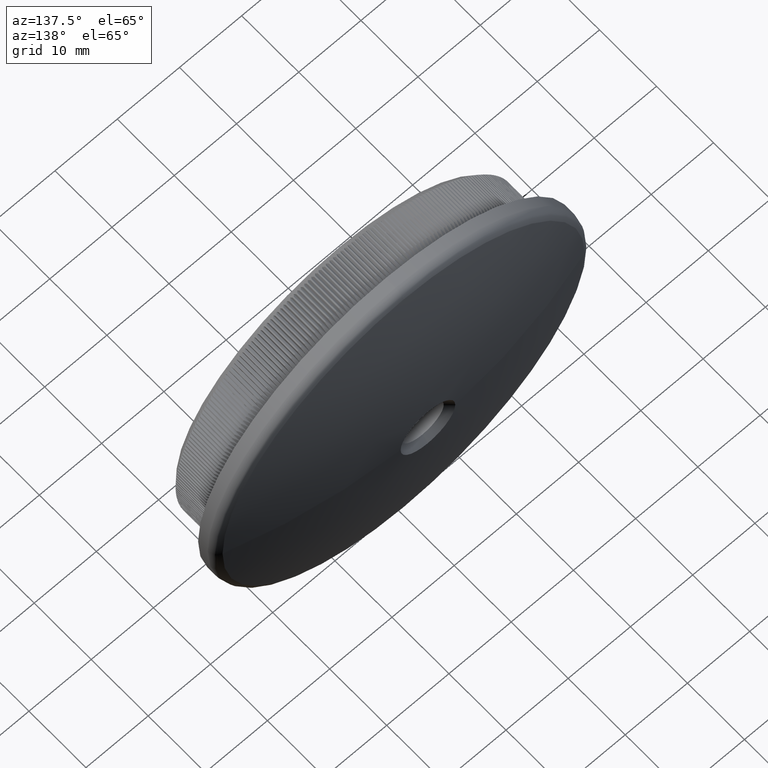
[diagram: clean part render]
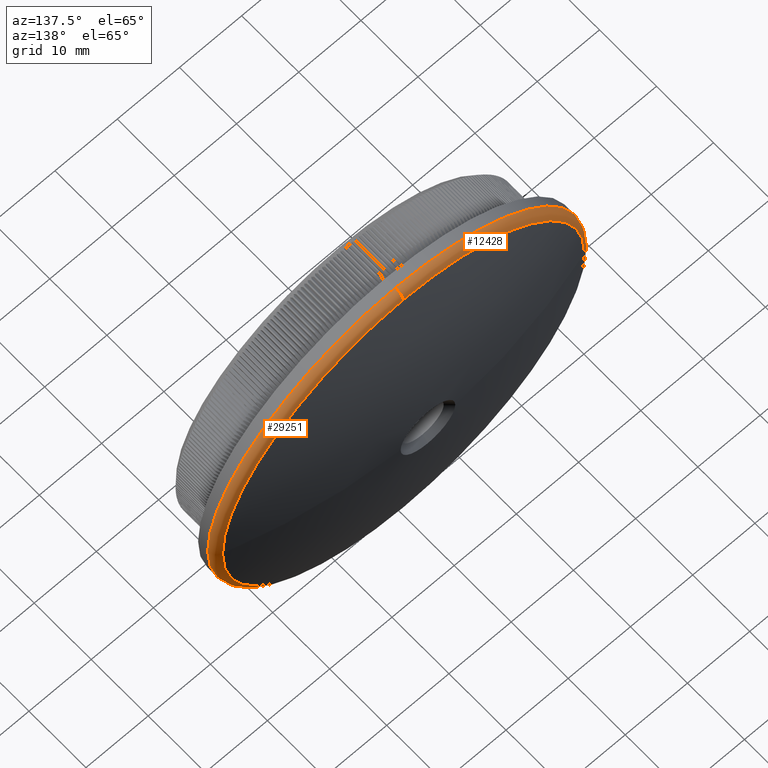
[diagram: same view with one multi-face feature highlighted, each face labeled with its STEP entity id]
A machine part, auxiliary view. The highlighted faces form ONE feature: a constant-radius fillet chain: 2 tangent blend faces with common blend radius 1.5 mm. The faces share edges in the B-rep.
Their STEP definitions:
[1] entity #12428 (Torus):
#2725 = VERTEX_POINT ( 'NONE', #38613 ) ;
#2886 = ORIENTED_EDGE ( 'NONE', *, *, #28703, .F. ) ;
#3929 = EDGE_CURVE ( 'NONE', #12416, #5471, #28543, .T. ) ;
#4830 = AXIS2_PLACEMENT_3D ( 'NONE', #24800, #24354, #31810 ) ;
#5471 = VERTEX_POINT ( 'NONE', #14325 ) ;
#6488 = AXIS2_PLACEMENT_3D ( 'NONE', #12466, #36932, #41189 ) ;
#6691 = DIRECTION ( 'NONE',  ( 0.000000000000000000, 1.000000000000000000, 0.000000000000000000 ) ) ;
#7801 = ORIENTED_EDGE ( 'NONE', *, *, #26812, .F. ) ;
#9790 = TOROIDAL_SURFACE ( 'NONE', #29928, 28.64999999999999503, 1.500000000000000000 ) ;
#10281 = AXIS2_PLACEMENT_3D ( 'NONE', #27511, #28112, #13730 ) ;
#10586 = ORIENTED_EDGE ( 'NONE', *, *, #43008, .T. ) ;
#11093 = DIRECTION ( 'NONE',  ( 1.000000000000000000, 0.000000000000000000, -1.224646799147352961E-16 ) ) ;
#12174 = ORIENTED_EDGE ( 'NONE', *, *, #25877, .F. ) ;
#12416 = VERTEX_POINT ( 'NONE', #30279 ) ;
#12428 = ADVANCED_FACE ( 'NONE', ( #21283 ), #9790, .T. ) ;
#12466 = CARTESIAN_POINT ( 'NONE',  ( 0.000000000000000000, 9.698157620612199992, -28.64999999999999503 ) ) ;
#13730 = DIRECTION ( 'NONE',  ( 0.000000000000000000, 0.000000000000000000, -1.000000000000000000 ) ) ;
#13983 = ORIENTED_EDGE ( 'NONE', *, *, #3929, .F. ) ;
#14325 = CARTESIAN_POINT ( 'NONE',  ( -29.09052289363562593, 11.13201241806655695, 3.562561574721366206E-15 ) ) ;
#14909 = CARTESIAN_POINT ( 'NONE',  ( 3.508613079557166097E-15, 9.698157620612199992, 28.64999999999999503 ) ) ;
#14959 = CARTESIAN_POINT ( 'NONE',  ( 3.627435837075313568E-15, 11.13201241806654984, 29.09052289363557975 ) ) ;
#15446 = CIRCLE ( 'NONE', #4830, 29.09052289363557975 ) ;
#17765 = CARTESIAN_POINT ( 'NONE',  ( 0.000000000000000000, 9.698157620612199992, -30.14999999999999503 ) ) ;
#19534 = CIRCLE ( 'NONE', #6488, 1.500000000000001332 ) ;
#20095 = AXIS2_PLACEMENT_3D ( 'NONE', #24101, #6691, #27753 ) ;
#21283 = FACE_OUTER_BOUND ( 'NONE', #33379, .T. ) ;
#24101 = CARTESIAN_POINT ( 'NONE',  ( 0.000000000000000000, 11.13201241806654984, 0.000000000000000000 ) ) ;
#24354 = DIRECTION ( 'NONE',  ( 0.000000000000000000, 1.000000000000000000, 0.000000000000000000 ) ) ;
#24800 = CARTESIAN_POINT ( 'NONE',  ( 0.000000000000000000, 11.13201241806654984, 0.000000000000000000 ) ) ;
#25877 = EDGE_CURVE ( 'NONE', #2725, #37738, #37472, .T. ) ;
#26283 = VERTEX_POINT ( 'NONE', #14959 ) ;
#26812 = EDGE_CURVE ( 'NONE', #26283, #2725, #28690, .T. ) ;
#26913 = DIRECTION ( 'NONE',  ( -0.000000000000000000, -1.000000000000000000, -0.000000000000000000 ) ) ;
#27511 = CARTESIAN_POINT ( 'NONE',  ( 0.000000000000000000, 9.698157620612199992, 0.000000000000000000 ) ) ;
#27753 = DIRECTION ( 'NONE',  ( 0.000000000000000000, 0.000000000000000000, -1.000000000000000000 ) ) ;
#27917 = AXIS2_PLACEMENT_3D ( 'NONE', #14909, #11093, #35545 ) ;
#28112 = DIRECTION ( 'NONE',  ( -0.000000000000000000, -1.000000000000000000, -0.000000000000000000 ) ) ;
#28543 = CIRCLE ( 'NONE', #20095, 29.09052289363557975 ) ;
#28690 = CIRCLE ( 'NONE', #27917, 1.500000000000001332 ) ;
#28703 = EDGE_CURVE ( 'NONE', #5471, #26283, #15446, .T. ) ;
#29928 = AXIS2_PLACEMENT_3D ( 'NONE', #30877, #26913, #33909 ) ;
#30279 = CARTESIAN_POINT ( 'NONE',  ( 0.000000000000000000, 11.13201241806654984, -29.09052289363557975 ) ) ;
#30877 = CARTESIAN_POINT ( 'NONE',  ( 0.000000000000000000, 9.698157620612199992, 0.000000000000000000 ) ) ;
#31810 = DIRECTION ( 'NONE',  ( 0.000000000000000000, 0.000000000000000000, -1.000000000000000000 ) ) ;
#33379 = EDGE_LOOP ( 'NONE', ( #7801, #2886, #13983, #10586, #12174 ) ) ;
#33909 = DIRECTION ( 'NONE',  ( 0.000000000000000000, 0.000000000000000000, -1.000000000000000000 ) ) ;
#35545 = DIRECTION ( 'NONE',  ( -1.224646799147351975E-16, 0.000000000000000000, -1.000000000000000000 ) ) ;
#36932 = DIRECTION ( 'NONE',  ( -1.000000000000000000, 0.000000000000000000, 0.000000000000000000 ) ) ;
#37472 = CIRCLE ( 'NONE', #10281, 30.14999999999999503 ) ;
#37738 = VERTEX_POINT ( 'NONE', #17765 ) ;
#38613 = CARTESIAN_POINT ( 'NONE',  ( 3.692310099429269608E-15, 9.698157620612199992, 30.14999999999999503 ) ) ;
#41189 = DIRECTION ( 'NONE',  ( 0.000000000000000000, 0.000000000000000000, 1.000000000000000000 ) ) ;
#43008 = EDGE_CURVE ( 'NONE', #12416, #37738, #19534, .T. ) ;
[2] entity #29251 (Torus):
#1047 = ORIENTED_EDGE ( 'NONE', *, *, #43008, .F. ) ;
#2725 = VERTEX_POINT ( 'NONE', #38613 ) ;
#3681 = DIRECTION ( 'NONE',  ( 0.000000000000000000, 1.000000000000000000, 0.000000000000000000 ) ) ;
#5514 = CIRCLE ( 'NONE', #44422, 30.14999999999999503 ) ;
#6488 = AXIS2_PLACEMENT_3D ( 'NONE', #12466, #36932, #41189 ) ;
#7427 = DIRECTION ( 'NONE',  ( -0.000000000000000000, -1.000000000000000000, -0.000000000000000000 ) ) ;
#7803 = CIRCLE ( 'NONE', #29447, 29.09052289363557975 ) ;
#8169 = VERTEX_POINT ( 'NONE', #16906 ) ;
#10138 = EDGE_CURVE ( 'NONE', #26283, #8169, #29299, .T. ) ;
#11093 = DIRECTION ( 'NONE',  ( 1.000000000000000000, 0.000000000000000000, -1.224646799147352961E-16 ) ) ;
#12416 = VERTEX_POINT ( 'NONE', #30279 ) ;
#12466 = CARTESIAN_POINT ( 'NONE',  ( 0.000000000000000000, 9.698157620612199992, -28.64999999999999503 ) ) ;
#14909 = CARTESIAN_POINT ( 'NONE',  ( 3.508613079557166097E-15, 9.698157620612199992, 28.64999999999999503 ) ) ;
#14959 = CARTESIAN_POINT ( 'NONE',  ( 3.627435837075313568E-15, 11.13201241806654984, 29.09052289363557975 ) ) ;
#15185 = EDGE_LOOP ( 'NONE', ( #40725, #40602, #44153, #1047, #17993 ) ) ;
#16906 = CARTESIAN_POINT ( 'NONE',  ( 29.09052289363562593, 11.13201241806655695, 0.000000000000000000 ) ) ;
#17153 = DIRECTION ( 'NONE',  ( 0.000000000000000000, 1.000000000000000000, 0.000000000000000000 ) ) ;
#17620 = FACE_OUTER_BOUND ( 'NONE', #15185, .T. ) ;
#17765 = CARTESIAN_POINT ( 'NONE',  ( 0.000000000000000000, 9.698157620612199992, -30.14999999999999503 ) ) ;
#17814 = DIRECTION ( 'NONE',  ( 0.000000000000000000, 0.000000000000000000, -1.000000000000000000 ) ) ;
#17993 = ORIENTED_EDGE ( 'NONE', *, *, #29246, .F. ) ;
#18020 = DIRECTION ( 'NONE',  ( -0.000000000000000000, -1.000000000000000000, -0.000000000000000000 ) ) ;
#18149 = AXIS2_PLACEMENT_3D ( 'NONE', #27845, #17153, #20999 ) ;
#18177 = CARTESIAN_POINT ( 'NONE',  ( 0.000000000000000000, 11.13201241806654984, 0.000000000000000000 ) ) ;
#19534 = CIRCLE ( 'NONE', #6488, 1.500000000000001332 ) ;
#20999 = DIRECTION ( 'NONE',  ( 0.000000000000000000, 0.000000000000000000, -1.000000000000000000 ) ) ;
#21095 = EDGE_CURVE ( 'NONE', #37738, #2725, #5514, .T. ) ;
#24171 = AXIS2_PLACEMENT_3D ( 'NONE', #38795, #18020, #39096 ) ;
#26283 = VERTEX_POINT ( 'NONE', #14959 ) ;
#26812 = EDGE_CURVE ( 'NONE', #26283, #2725, #28690, .T. ) ;
#27845 = CARTESIAN_POINT ( 'NONE',  ( 0.000000000000000000, 11.13201241806654984, 0.000000000000000000 ) ) ;
#27917 = AXIS2_PLACEMENT_3D ( 'NONE', #14909, #11093, #35545 ) ;
#28336 = CARTESIAN_POINT ( 'NONE',  ( 0.000000000000000000, 9.698157620612199992, 0.000000000000000000 ) ) ;
#28690 = CIRCLE ( 'NONE', #27917, 1.500000000000001332 ) ;
#29246 = EDGE_CURVE ( 'NONE', #8169, #12416, #7803, .T. ) ;
#29251 = ADVANCED_FACE ( 'NONE', ( #17620 ), #44386, .T. ) ;
#29299 = CIRCLE ( 'NONE', #18149, 29.09052289363557975 ) ;
#29447 = AXIS2_PLACEMENT_3D ( 'NONE', #18177, #3681, #31759 ) ;
#30279 = CARTESIAN_POINT ( 'NONE',  ( 0.000000000000000000, 11.13201241806654984, -29.09052289363557975 ) ) ;
#31759 = DIRECTION ( 'NONE',  ( 0.000000000000000000, 0.000000000000000000, -1.000000000000000000 ) ) ;
#35545 = DIRECTION ( 'NONE',  ( -1.224646799147351975E-16, 0.000000000000000000, -1.000000000000000000 ) ) ;
#36932 = DIRECTION ( 'NONE',  ( -1.000000000000000000, 0.000000000000000000, 0.000000000000000000 ) ) ;
#37738 = VERTEX_POINT ( 'NONE', #17765 ) ;
#38613 = CARTESIAN_POINT ( 'NONE',  ( 3.692310099429269608E-15, 9.698157620612199992, 30.14999999999999503 ) ) ;
#38795 = CARTESIAN_POINT ( 'NONE',  ( 0.000000000000000000, 9.698157620612199992, 0.000000000000000000 ) ) ;
#39096 = DIRECTION ( 'NONE',  ( 0.000000000000000000, 0.000000000000000000, -1.000000000000000000 ) ) ;
#40602 = ORIENTED_EDGE ( 'NONE', *, *, #26812, .T. ) ;
#40725 = ORIENTED_EDGE ( 'NONE', *, *, #10138, .F. ) ;
#41189 = DIRECTION ( 'NONE',  ( 0.000000000000000000, 0.000000000000000000, 1.000000000000000000 ) ) ;
#43008 = EDGE_CURVE ( 'NONE', #12416, #37738, #19534, .T. ) ;
#44153 = ORIENTED_EDGE ( 'NONE', *, *, #21095, .F. ) ;
#44386 = TOROIDAL_SURFACE ( 'NONE', #24171, 28.64999999999999503, 1.500000000000000000 ) ;
#44422 = AXIS2_PLACEMENT_3D ( 'NONE', #28336, #7427, #17814 ) ;